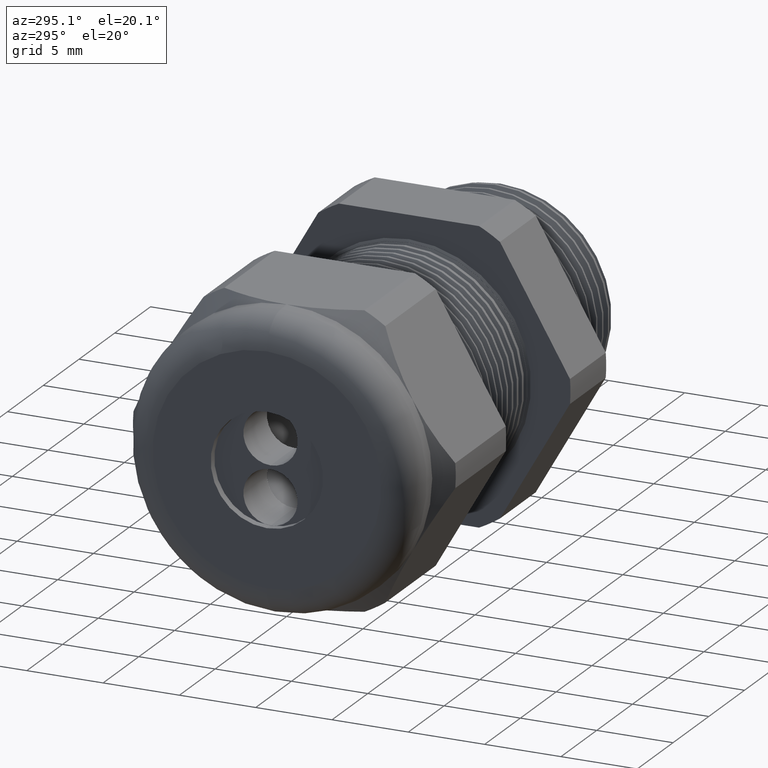
[diagram: clean part render]
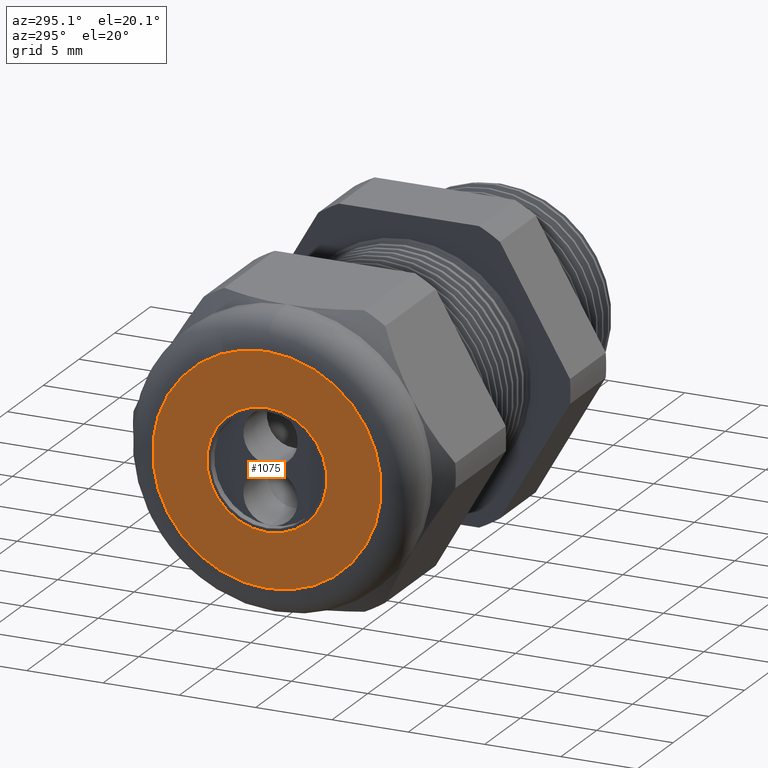
[diagram: same view with one face highlighted and labeled with its STEP entity id]
A machine part, auxiliary view. The second image highlights one B-rep face of the part: STEP entity #1075.
In plain terms, the highlighted planar face has unit normal (-1, 0, 0).
Its self-contained STEP definition (entity closure, byte-faithful):
#998 = ORIENTED_EDGE ( 'NONE', *, *, #1747, .T. ) ;
#999 = ORIENTED_EDGE ( 'NONE', *, *, #1000, .T. ) ;
#1000 = EDGE_CURVE ( 'NONE', #1738, #1742, #3086, .T. ) ;
#1001 = EDGE_LOOP ( 'NONE', ( #1055, #1056 ) ) ;
#1055 = ORIENTED_EDGE ( 'NONE', *, *, #1072, .T. ) ;
#1056 = ORIENTED_EDGE ( 'NONE', *, *, #1783, .T. ) ;
#1072 = EDGE_CURVE ( 'NONE', #1781, #1792, #3208, .T. ) ;
#1075 = ADVANCED_FACE ( 'NONE', ( #3262, #3261 ), #3260, .T. ) ;
#1076 = EDGE_LOOP ( 'NONE', ( #998, #999 ) ) ;
#1738 = VERTEX_POINT ( 'NONE', #4418 ) ;
#1742 = VERTEX_POINT ( 'NONE', #4412 ) ;
#1747 = EDGE_CURVE ( 'NONE', #1742, #1738, #4399, .T. ) ;
#1781 = VERTEX_POINT ( 'NONE', #4471 ) ;
#1783 = EDGE_CURVE ( 'NONE', #1792, #1781, #4464, .T. ) ;
#1792 = VERTEX_POINT ( 'NONE', #4505 ) ;
#3083 = DIRECTION ( 'NONE',  ( 0.0000000000000000000, 0.0000000000000000000, 1.000000000000000000 ) ) ;
#3084 = DIRECTION ( 'NONE',  ( -1.000000000000000000, 0.0000000000000000000, 0.0000000000000000000 ) ) ;
#3085 = AXIS2_PLACEMENT_3D ( 'NONE', #3092, #3084, #3083 ) ;
#3086 = CIRCLE ( 'NONE', #3085, 0.2950000000000001000 ) ;
#3092 = CARTESIAN_POINT ( 'NONE',  ( -1.289999999999999800, 0.0000000000000000000, 0.0000000000000000000 ) ) ;
#3203 = AXIS2_PLACEMENT_3D ( 'NONE', #3265, #3264, #3263 ) ;
#3208 = CIRCLE ( 'NONE', #3203, 0.1550000000000000000 ) ;
#3256 = DIRECTION ( 'NONE',  ( 0.0000000000000000000, 0.0000000000000000000, 1.000000000000000000 ) ) ;
#3257 = DIRECTION ( 'NONE',  ( -1.000000000000000000, 0.0000000000000000000, 0.0000000000000000000 ) ) ;
#3258 = CARTESIAN_POINT ( 'NONE',  ( -1.289999999999999800, 0.3750000000000000600, 0.0000000000000000000 ) ) ;
#3259 = AXIS2_PLACEMENT_3D ( 'NONE', #3258, #3257, #3256 ) ;
#3260 = PLANE ( 'NONE',  #3259 ) ;
#3261 = FACE_BOUND ( 'NONE', #1001, .T. ) ;
#3262 = FACE_OUTER_BOUND ( 'NONE', #1076, .T. ) ;
#3263 = DIRECTION ( 'NONE',  ( 0.0000000000000000000, 0.0000000000000000000, -1.000000000000000000 ) ) ;
#3264 = DIRECTION ( 'NONE',  ( 1.000000000000000000, 0.0000000000000000000, 0.0000000000000000000 ) ) ;
#3265 = CARTESIAN_POINT ( 'NONE',  ( -1.289999999999999800, 0.0000000000000000000, 0.0000000000000000000 ) ) ;
#4395 = DIRECTION ( 'NONE',  ( 0.0000000000000000000, 0.0000000000000000000, 1.000000000000000000 ) ) ;
#4396 = DIRECTION ( 'NONE',  ( -1.000000000000000000, 0.0000000000000000000, 0.0000000000000000000 ) ) ;
#4397 = CARTESIAN_POINT ( 'NONE',  ( -1.289999999999999800, 0.0000000000000000000, 0.0000000000000000000 ) ) ;
#4398 = AXIS2_PLACEMENT_3D ( 'NONE', #4397, #4396, #4395 ) ;
#4399 = CIRCLE ( 'NONE', #4398, 0.2950000000000001000 ) ;
#4412 = CARTESIAN_POINT ( 'NONE',  ( -1.289999999999999800, 0.0000000000000000000, 0.2950000000000001000 ) ) ;
#4418 = CARTESIAN_POINT ( 'NONE',  ( -1.289999999999999800, 4.102566777143634000E-017, -0.2950000000000001000 ) ) ;
#4460 = DIRECTION ( 'NONE',  ( 0.0000000000000000000, 0.0000000000000000000, -1.000000000000000000 ) ) ;
#4461 = DIRECTION ( 'NONE',  ( 1.000000000000000000, 0.0000000000000000000, 0.0000000000000000000 ) ) ;
#4462 = CARTESIAN_POINT ( 'NONE',  ( -1.289999999999999800, 0.0000000000000000000, 0.0000000000000000000 ) ) ;
#4463 = AXIS2_PLACEMENT_3D ( 'NONE', #4462, #4461, #4460 ) ;
#4464 = CIRCLE ( 'NONE', #4463, 0.1550000000000000000 ) ;
#4471 = CARTESIAN_POINT ( 'NONE',  ( -1.289999999999999800, 0.0000000000000000000, -0.1550000000000000000 ) ) ;
#4505 = CARTESIAN_POINT ( 'NONE',  ( -1.289999999999999800, 1.898202538678397300E-017, 0.1550000000000000000 ) ) ;